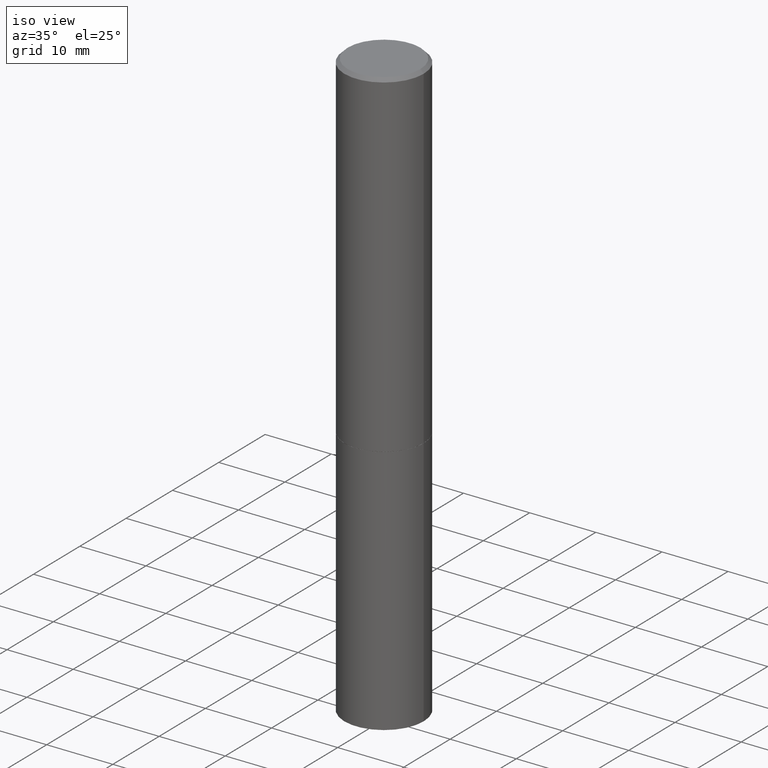
[diagram: clean part render]
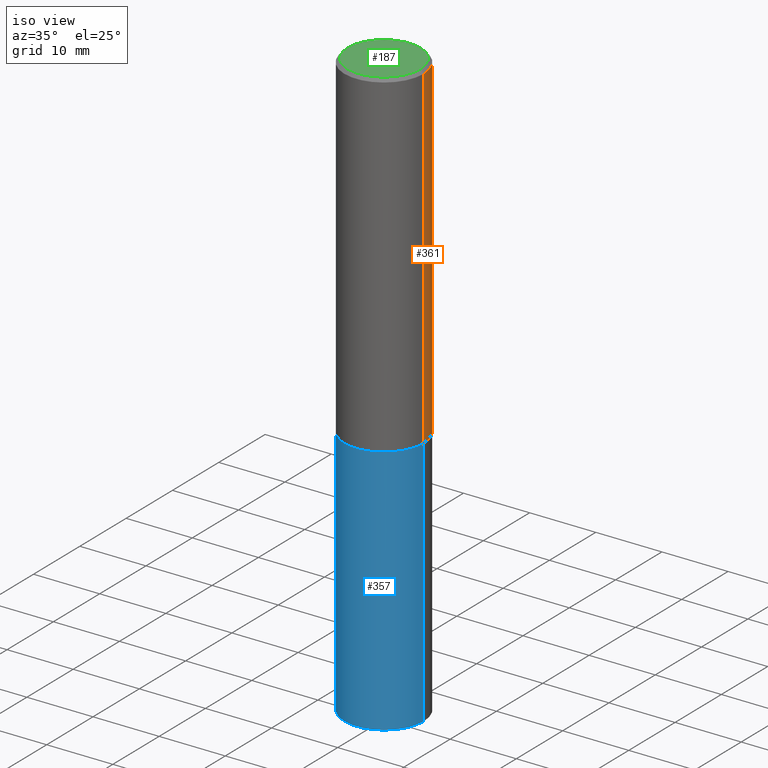
[diagram: same view with three faces highlighted in distinct colors, each labeled with its STEP entity id]
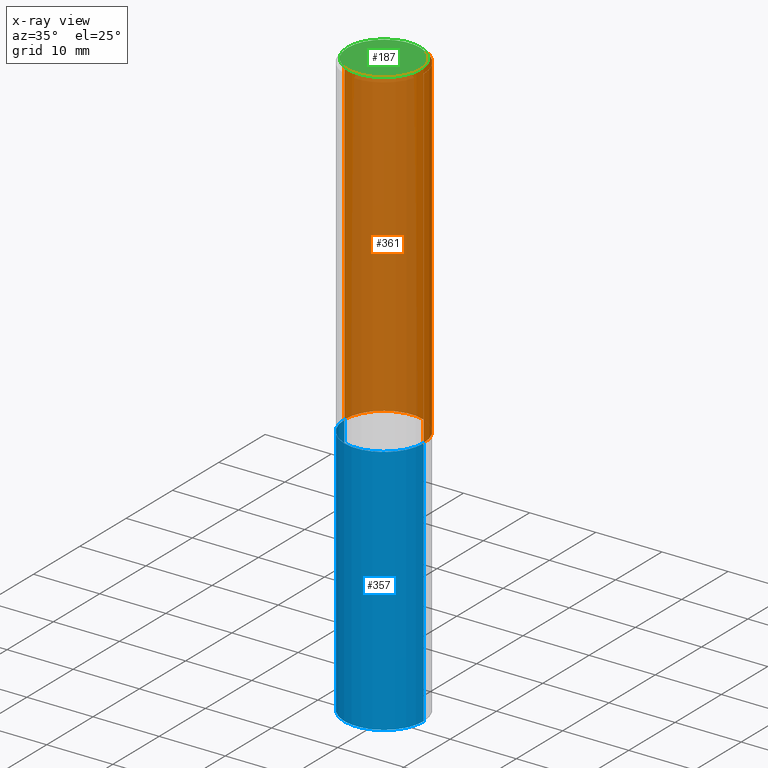
[diagram: x-ray of the same camera — body ghosted, the three highlighted faces saturated]
A machine part, iso view with three faces highlighted in distinct colors.
The next image is the same camera in x-ray (body ghosted, the three faces saturated) — at least one of them is partly hidden behind the body in this view.
Their STEP definitions:

[orange] entity #361 — the highlighted cylindrical surface (partial cylindrical patch) has radius 5.9995 mm, axis along (-0, 0, 1).
#3 = DIRECTION ( 'NONE',  ( 1.000000000000000000, -6.982962677686266711E-15, 4.876176775795935793E-29 ) ) ;
#10 = CARTESIAN_POINT ( 'NONE',  ( -0.2361999999999998545, 1.678301941865355605E-15, -1.161852468318208056E-29 ) ) ;
#13 = DIRECTION ( 'NONE',  ( -2.445468806185136877E-29, 3.491481338843145188E-15, 1.000000000000000000 ) ) ;
#14 = CARTESIAN_POINT ( 'NONE',  ( 0.2361999999999997157, -1.690279253850496996E-15, -0.02000000000000003164 ) ) ;
#16 = EDGE_CURVE ( 'NONE', #231, #87, #181, .T. ) ;
#46 = VECTOR ( 'NONE', #326, 39.37007874015748143 ) ;
#56 = FACE_OUTER_BOUND ( 'NONE', #172, .T. ) ;
#58 = ORIENTED_EDGE ( 'NONE', *, *, #105, .T. ) ;
#64 = VERTEX_POINT ( 'NONE', #100 ) ;
#84 = AXIS2_PLACEMENT_3D ( 'NONE', #180, #213, #210 ) ;
#87 = VERTEX_POINT ( 'NONE', #14 ) ;
#93 = AXIS2_PLACEMENT_3D ( 'NONE', #320, #232, #3 ) ;
#100 = CARTESIAN_POINT ( 'NONE',  ( -0.2361999999999997157, 1.579546157692631255E-15, -0.02000000000000003164 ) ) ;
#103 = EDGE_CURVE ( 'NONE', #231, #116, #246, .T. ) ;
#105 = EDGE_CURVE ( 'NONE', #116, #64, #303, .T. ) ;
#116 = VERTEX_POINT ( 'NONE', #294 ) ;
#120 = ORIENTED_EDGE ( 'NONE', *, *, #16, .F. ) ;
#125 = VECTOR ( 'NONE', #13, 39.37007874015748143 ) ;
#144 = ORIENTED_EDGE ( 'NONE', *, *, #103, .T. ) ;
#172 = EDGE_LOOP ( 'NONE', ( #144, #58, #344, #120 ) ) ;
#180 = CARTESIAN_POINT ( 'NONE',  ( 4.907566800252331482E-29, -7.006704750790423614E-15, -2.006799999999999695 ) ) ;
#181 = LINE ( 'NONE', #299, #46 ) ;
#208 = EDGE_CURVE ( 'NONE', #87, #64, #252, .T. ) ;
#210 = DIRECTION ( 'NONE',  ( 1.000000000000000000, -6.982962677686265133E-15, 0.000000000000000000 ) ) ;
#213 = DIRECTION ( 'NONE',  ( -2.445468806185136597E-29, 3.491481338843145583E-15, 1.000000000000000000 ) ) ;
#231 = VERTEX_POINT ( 'NONE', #360 ) ;
#232 = DIRECTION ( 'NONE',  ( -2.445468806185136597E-29, 3.491481338843145583E-15, 1.000000000000000000 ) ) ;
#246 = CIRCLE ( 'NONE', #84, 0.2361999999999999933 ) ;
#248 = DIRECTION ( 'NONE',  ( -2.445468806185136597E-29, 3.491481338843145583E-15, 1.000000000000000000 ) ) ;
#252 = CIRCLE ( 'NONE', #295, 0.2361999999999997157 ) ;
#253 = CYLINDRICAL_SURFACE ( 'NONE', #93, 0.2361999999999998545 ) ;
#273 = DIRECTION ( 'NONE',  ( 1.000000000000000000, -6.982962677686266711E-15, 0.000000000000000000 ) ) ;
#294 = CARTESIAN_POINT ( 'NONE',  ( -0.2362000000000000210, -1.859965246918283512E-15, -2.006799999999999695 ) ) ;
#295 = AXIS2_PLACEMENT_3D ( 'NONE', #304, #248, #273 ) ;
#299 = CARTESIAN_POINT ( 'NONE',  ( 0.2361999999999998545, -1.649375784469495145E-15, 1.151752954442999387E-29 ) ) ;
#303 = LINE ( 'NONE', #10, #125 ) ;
#304 = CARTESIAN_POINT ( 'NONE',  ( 4.890937612370280165E-31, -6.982962677686301470E-17, -0.02000000000000003164 ) ) ;
#320 = CARTESIAN_POINT ( 'NONE',  ( 0.000000000000000000, 0.000000000000000000, 0.000000000000000000 ) ) ;
#326 = DIRECTION ( 'NONE',  ( -2.445468806185136877E-29, 3.491481338843145188E-15, 1.000000000000000000 ) ) ;
#344 = ORIENTED_EDGE ( 'NONE', *, *, #208, .F. ) ;
#360 = CARTESIAN_POINT ( 'NONE',  ( 0.2361999999999999933, -8.656080535259919350E-15, -2.006799999999999695 ) ) ;
#361 = ADVANCED_FACE ( 'NONE', ( #56 ), #253, .T. ) ;

[blue] entity #357 — the highlighted cylindrical surface (partial cylindrical patch) has radius 5.9995 mm, axis along (-0, 0, 1).
#12 = DIRECTION ( 'NONE',  ( 1.000000000000000000, -6.982962677686265133E-15, 0.000000000000000000 ) ) ;
#20 = VECTOR ( 'NONE', #278, 39.37007874015748143 ) ;
#38 = ORIENTED_EDGE ( 'NONE', *, *, #80, .F. ) ;
#42 = LINE ( 'NONE', #95, #150 ) ;
#80 = EDGE_CURVE ( 'NONE', #261, #237, #42, .T. ) ;
#95 = CARTESIAN_POINT ( 'NONE',  ( -0.2361999999999999933, 1.678301941865356591E-15, -1.161852468318208757E-29 ) ) ;
#97 = EDGE_CURVE ( 'NONE', #261, #203, #352, .T. ) ;
#110 = DIRECTION ( 'NONE',  ( 1.000000000000000000, -6.982962677686269077E-15, 0.000000000000000000 ) ) ;
#126 = CARTESIAN_POINT ( 'NONE',  ( 8.568678149992099474E-29, -1.223380146317249786E-14, -3.503899999999999793 ) ) ;
#136 = FACE_OUTER_BOUND ( 'NONE', #346, .T. ) ;
#150 = VECTOR ( 'NONE', #271, 39.37007874015748143 ) ;
#167 = DIRECTION ( 'NONE',  ( 1.000000000000000000, -6.982962677686266711E-15, 4.876176775795936353E-29 ) ) ;
#179 = AXIS2_PLACEMENT_3D ( 'NONE', #331, #305, #110 ) ;
#184 = DIRECTION ( 'NONE',  ( -2.445468806185136597E-29, 3.491481338843145583E-15, 1.000000000000000000 ) ) ;
#185 = DIRECTION ( 'NONE',  ( -2.445468806185136597E-29, 3.491481338843145583E-15, 1.000000000000000000 ) ) ;
#186 = CARTESIAN_POINT ( 'NONE',  ( 0.2361999999999999933, -1.649375784469496131E-15, 1.151752954443000088E-29 ) ) ;
#189 = CARTESIAN_POINT ( 'NONE',  ( 0.2361999999999999933, -8.659572016598763935E-15, -2.007800000000000029 ) ) ;
#201 = EDGE_CURVE ( 'NONE', #237, #311, #221, .T. ) ;
#203 = VERTEX_POINT ( 'NONE', #249 ) ;
#205 = ORIENTED_EDGE ( 'NONE', *, *, #217, .T. ) ;
#211 = AXIS2_PLACEMENT_3D ( 'NONE', #126, #184, #12 ) ;
#217 = EDGE_CURVE ( 'NONE', #203, #311, #218, .T. ) ;
#218 = LINE ( 'NONE', #186, #20 ) ;
#221 = CIRCLE ( 'NONE', #179, 0.2361999999999999933 ) ;
#224 = CARTESIAN_POINT ( 'NONE',  ( -0.2361999999999999933, -7.943696905785525451E-15, -3.503899999999999793 ) ) ;
#237 = VERTEX_POINT ( 'NONE', #245 ) ;
#245 = CARTESIAN_POINT ( 'NONE',  ( -0.2361999999999999933, -7.943696905785525451E-15, -2.007800000000000029 ) ) ;
#249 = CARTESIAN_POINT ( 'NONE',  ( 0.2361999999999999933, -1.388317724764199281E-14, -3.503899999999999793 ) ) ;
#255 = ORIENTED_EDGE ( 'NONE', *, *, #97, .T. ) ;
#261 = VERTEX_POINT ( 'NONE', #224 ) ;
#271 = DIRECTION ( 'NONE',  ( -2.445468806185136877E-29, 3.491481338843145188E-15, 1.000000000000000000 ) ) ;
#278 = DIRECTION ( 'NONE',  ( -2.445468806185136877E-29, 3.491481338843145188E-15, 1.000000000000000000 ) ) ;
#305 = DIRECTION ( 'NONE',  ( -2.445468806185136597E-29, 3.491481338843145583E-15, 1.000000000000000000 ) ) ;
#308 = CYLINDRICAL_SURFACE ( 'NONE', #359, 0.2361999999999999933 ) ;
#311 = VERTEX_POINT ( 'NONE', #189 ) ;
#316 = ORIENTED_EDGE ( 'NONE', *, *, #201, .F. ) ;
#331 = CARTESIAN_POINT ( 'NONE',  ( 4.910012269058516525E-29, -7.010196232129267410E-15, -2.007800000000000029 ) ) ;
#346 = EDGE_LOOP ( 'NONE', ( #38, #255, #205, #316 ) ) ;
#352 = CIRCLE ( 'NONE', #211, 0.2361999999999999933 ) ;
#357 = ADVANCED_FACE ( 'NONE', ( #136 ), #308, .T. ) ;
#359 = AXIS2_PLACEMENT_3D ( 'NONE', #366, #185, #167 ) ;
#366 = CARTESIAN_POINT ( 'NONE',  ( 0.000000000000000000, 0.000000000000000000, 0.000000000000000000 ) ) ;

[green] entity #187 — the highlighted planar face has unit normal (0, -0, -1).
#52 = CARTESIAN_POINT ( 'NONE',  ( -1.043851414335219820E-46, 1.490343170380447200E-32, 4.268512490100411279E-18 ) ) ;
#61 = AXIS2_PLACEMENT_3D ( 'NONE', #52, #251, #135 ) ;
#66 = DIRECTION ( 'NONE',  ( -1.000000000000000000, 6.982962677686265922E-15, -4.876176775795935793E-29 ) ) ;
#83 = ORIENTED_EDGE ( 'NONE', *, *, #229, .T. ) ;
#89 = VERTEX_POINT ( 'NONE', #159 ) ;
#94 = PLANE ( 'NONE',  #175 ) ;
#135 = DIRECTION ( 'NONE',  ( 1.000000000000000000, -6.982962677686267499E-15, 4.876217060660161841E-29 ) ) ;
#159 = CARTESIAN_POINT ( 'NONE',  ( 0.2161999999999997257, -1.586759460484350016E-15, 4.268512490111238857E-18 ) ) ;
#163 = EDGE_CURVE ( 'NONE', #293, #89, #318, .T. ) ;
#175 = AXIS2_PLACEMENT_3D ( 'NONE', #207, #322, #66 ) ;
#178 = DIRECTION ( 'NONE',  ( -2.445468806185136597E-29, 3.491481338843145583E-15, 1.000000000000000000 ) ) ;
#187 = ADVANCED_FACE ( 'NONE', ( #350 ), #94, .F. ) ;
#190 = AXIS2_PLACEMENT_3D ( 'NONE', #356, #178, #348 ) ;
#194 = ORIENTED_EDGE ( 'NONE', *, *, #163, .T. ) ;
#207 = CARTESIAN_POINT ( 'NONE',  ( 1.509716530915768746E-15, 0.2161999999999997257, -7.527240092128370190E-16 ) ) ;
#229 = EDGE_CURVE ( 'NONE', #89, #293, #325, .T. ) ;
#251 = DIRECTION ( 'NONE',  ( -2.445468806185136597E-29, 3.491481338843145583E-15, 1.000000000000000000 ) ) ;
#291 = EDGE_LOOP ( 'NONE', ( #194, #83 ) ) ;
#293 = VERTEX_POINT ( 'NONE', #358 ) ;
#318 = CIRCLE ( 'NONE', #190, 0.2161999999999997257 ) ;
#322 = DIRECTION ( 'NONE',  ( 2.438088387897960049E-29, -3.491481338843145188E-15, -1.000000000000000000 ) ) ;
#325 = CIRCLE ( 'NONE', #61, 0.2161999999999997257 ) ;
#348 = DIRECTION ( 'NONE',  ( 1.000000000000000000, -6.982962677686267499E-15, 4.876217060660161841E-29 ) ) ;
#350 = FACE_OUTER_BOUND ( 'NONE', #291, .T. ) ;
#356 = CARTESIAN_POINT ( 'NONE',  ( -1.043851414335219820E-46, 1.490343170380447200E-32, 4.268512490100411279E-18 ) ) ;
#358 = CARTESIAN_POINT ( 'NONE',  ( -0.2161999999999997257, 1.544631344304200197E-15, 4.268512490089730842E-18 ) ) ;